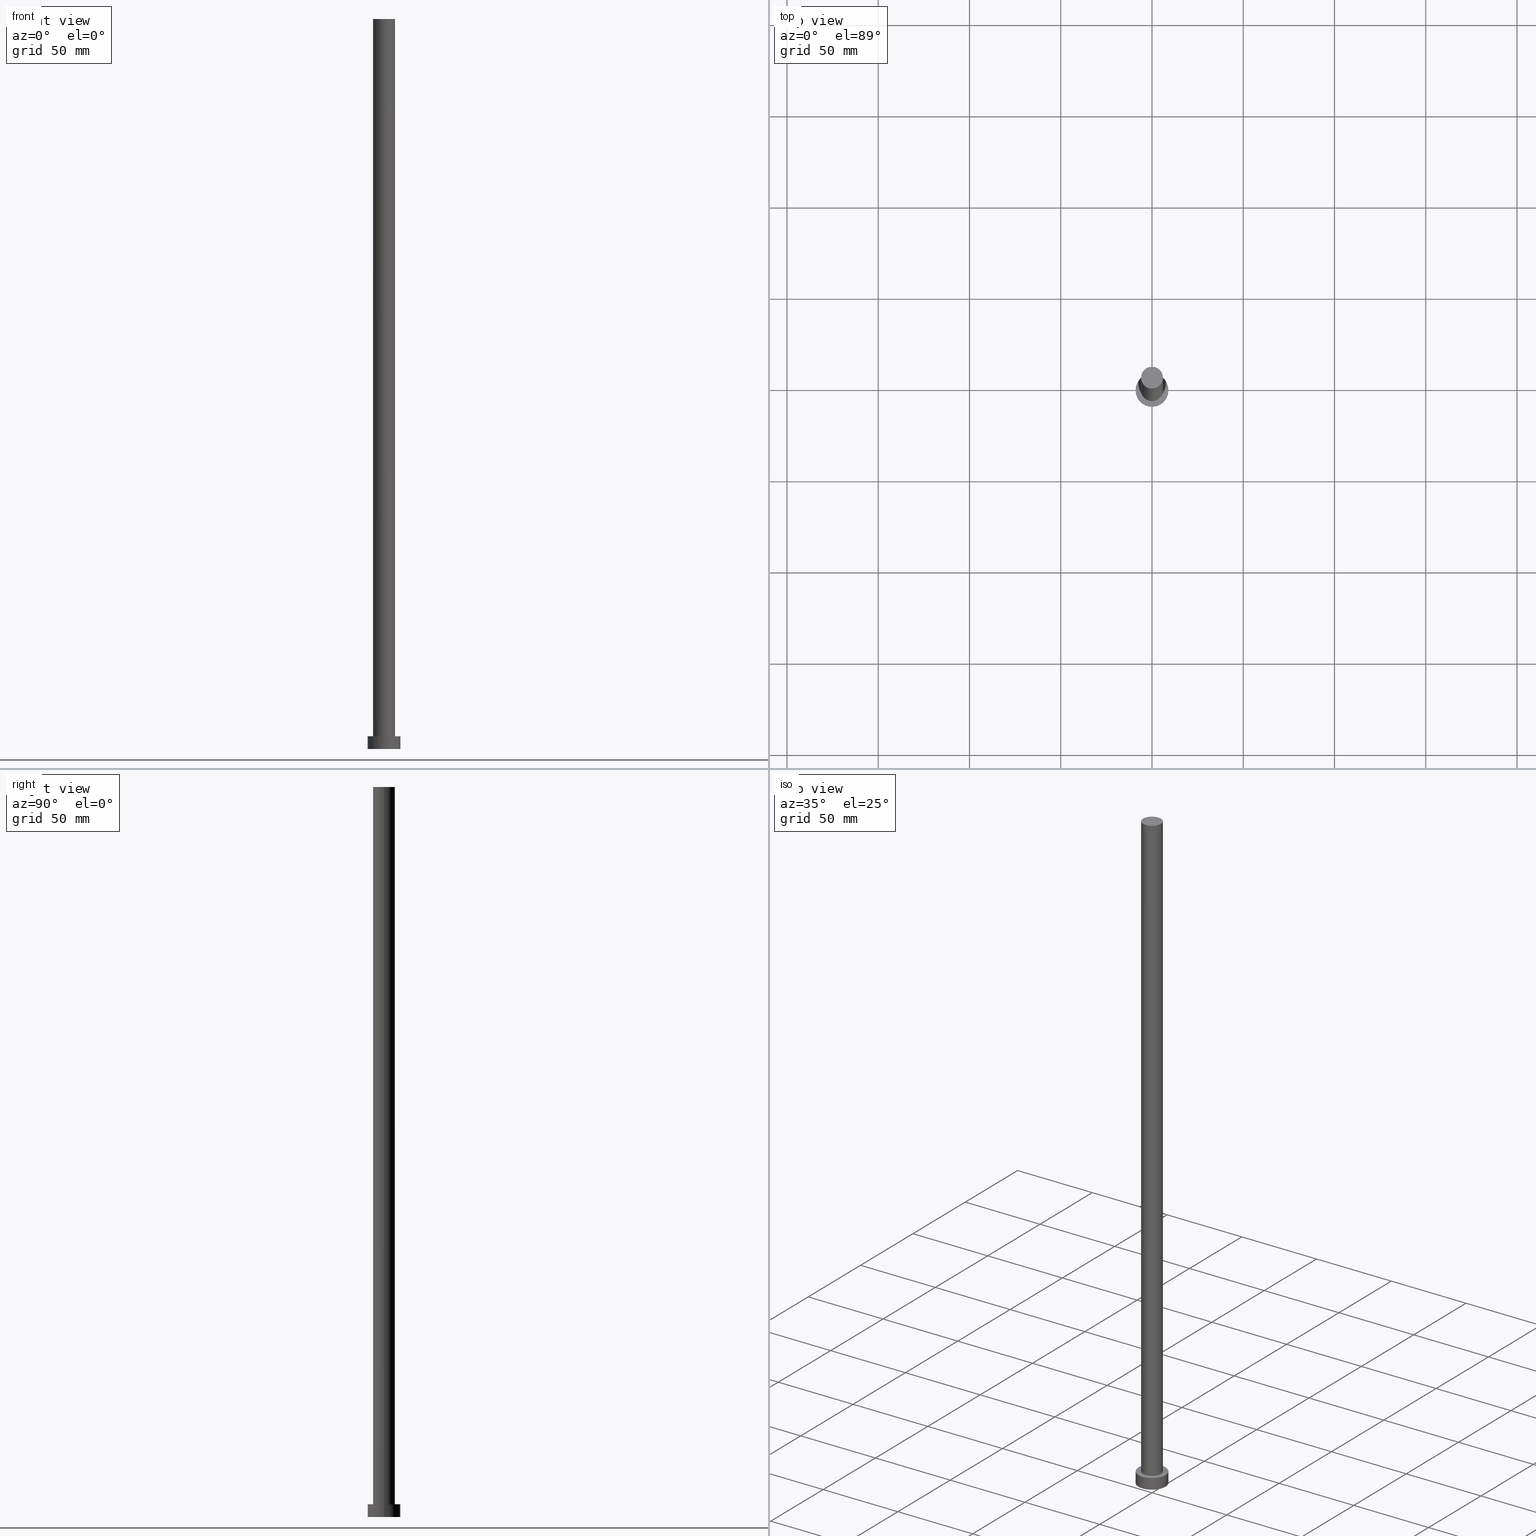
[diagram: canonical four-view strip — front | top / right | iso, engineering-drawing reading convention]
A machine part, canonical four-view strip (front | top / right | iso — engineering-drawing reading convention). The complete STEP part file that produces these views, byte-faithful:
ISO-10303-21;
HEADER;
FILE_DESCRIPTION (( 'STEP AP203' ),
    '1' );
FILE_NAME ('8816.STEP',
    '2023-02-13T08:56:15',
    ( '' ),
    ( '' ),
    'SwSTEP 2.0',
    'SolidWorks 2019',
    '' );
FILE_SCHEMA (( 'CONFIG_CONTROL_DESIGN' ));
ENDSEC;

DATA;
#1 = LINE ( 'NONE', #44, #5 ) ;
#2 = APPROVAL_ROLE ( '' ) ;
#3 = EDGE_CURVE ( 'NONE', #139, #204, #133, .T. ) ;
#4 = APPROVAL_PERSON_ORGANIZATION ( #152, #14, #69 ) ;
#5 = VECTOR ( 'NONE', #171, 1000.000000000000000 ) ;
#6 = DATE_AND_TIME ( #88, #51 ) ;
#7 = CC_DESIGN_PERSON_AND_ORGANIZATION_ASSIGNMENT ( #67, #29, ( #174 ) ) ;
#8 = APPROVAL_DATE_TIME ( #172, #95 ) ;
#9 = VERTEX_POINT ( 'NONE', #213 ) ;
#10 = DIRECTION ( 'NONE',  ( -0.000000000000000000, -0.000000000000000000, -1.000000000000000000 ) ) ;
#11 = AXIS2_PLACEMENT_3D ( 'NONE', #207, #10, #157 ) ;
#12 = ORIENTED_EDGE ( 'NONE', *, *, #177, .F. ) ;
#13 = VERTEX_POINT ( 'NONE', #98 ) ;
#14 = APPROVAL ( #155, 'NEUR�EN�' ) ;
#15 = APPLICATION_CONTEXT ( 'configuration controlled 3d designs of mechanical parts and assemblies' ) ;
#16 = DIRECTION ( 'NONE',  ( 0.000000000000000000, 0.000000000000000000, 1.000000000000000000 ) ) ;
#17 = CARTESIAN_POINT ( 'NONE',  ( 6.000000000000000888, 7.347880794884120722E-16, 400.0000000000000000 ) ) ;
#18 = EDGE_CURVE ( 'NONE', #9, #229, #111, .T. ) ;
#19 = PLANE ( 'NONE',  #212 ) ;
#20 = DIRECTION ( 'NONE',  ( -1.000000000000000000, 0.000000000000000000, 0.000000000000000000 ) ) ;
#21 = AXIS2_PLACEMENT_3D ( 'NONE', #76, #163, #203 ) ;
#22 = FACE_OUTER_BOUND ( 'NONE', #116, .T. ) ;
#23 = CARTESIAN_POINT ( 'NONE',  ( -6.000000000000000888, 0.000000000000000000, 400.0000000000000000 ) ) ;
#24 = PERSON_AND_ORGANIZATION_ROLE ( 'creator' ) ;
#25 = CARTESIAN_POINT ( 'NONE',  ( 0.000000000000000000, 0.000000000000000000, 7.000000000000000000 ) ) ;
#26 = DATE_AND_TIME ( #219, #38 ) ;
#27 = CIRCLE ( 'NONE', #62, 6.000000000000000888 ) ;
#28 = CIRCLE ( 'NONE', #200, 9.000000000000000000 ) ;
#29 = PERSON_AND_ORGANIZATION_ROLE ( 'classification_officer' ) ;
#30 = APPROVAL_DATE_TIME ( #109, #14 ) ;
#31 = CC_DESIGN_PERSON_AND_ORGANIZATION_ASSIGNMENT ( #223, #24, ( #140 ) ) ;
#32 = ORIENTED_EDGE ( 'NONE', *, *, #238, .T. ) ;
#33 = ORIENTED_EDGE ( 'NONE', *, *, #177, .T. ) ;
#34 = VECTOR ( 'NONE', #71, 1000.000000000000000 ) ;
#35 = CC_DESIGN_PERSON_AND_ORGANIZATION_ASSIGNMENT ( #135, #170, ( #59 ) ) ;
#36 = CARTESIAN_POINT ( 'NONE',  ( 0.000000000000000000, 0.000000000000000000, 7.000000000000000000 ) ) ;
#37 = CARTESIAN_POINT ( 'NONE',  ( 0.000000000000000000, 0.000000000000000000, 400.0000000000000000 ) ) ;
#38 = LOCAL_TIME ( 9, 56, 15.00000000000000000, #242 ) ;
#39 = CIRCLE ( 'NONE', #73, 6.000000000000000888 ) ;
#40 = CARTESIAN_POINT ( 'NONE',  ( 0.000000000000000000, 0.000000000000000000, 0.000000000000000000 ) ) ;
#41 = EDGE_LOOP ( 'NONE', ( #72, #228 ) ) ;
#42 = DIRECTION ( 'NONE',  ( -1.000000000000000000, 0.000000000000000000, 0.000000000000000000 ) ) ;
#43 = CYLINDRICAL_SURFACE ( 'NONE', #162, 9.000000000000000000 ) ;
#44 = CARTESIAN_POINT ( 'NONE',  ( -9.000000000000000000, 0.000000000000000000, 7.000000000000000000 ) ) ;
#45 = DATE_TIME_ROLE ( 'creation_date' ) ;
#46 = DIRECTION ( 'NONE',  ( 1.000000000000000000, 0.000000000000000000, -0.000000000000000000 ) ) ;
#47 = CARTESIAN_POINT ( 'NONE',  ( 9.000000000000000000, 1.102182119232617714E-15, 7.000000000000000000 ) ) ;
#48 = APPROVAL_STATUS ( 'not_yet_approved' ) ;
#49 = PERSON_AND_ORGANIZATION ( #230, #97 ) ;
#50 = PRODUCT_DEFINITION ( 'NEZN�M�', '', #140, #235 ) ;
#51 = LOCAL_TIME ( 9, 56, 15.00000000000000000, #150 ) ;
#52 = EDGE_LOOP ( 'NONE', ( #192, #224, #226, #80 ) ) ;
#53 = DIRECTION ( 'NONE',  ( 0.000000000000000000, 0.000000000000000000, 1.000000000000000000 ) ) ;
#54 = APPROVAL_PERSON_ORGANIZATION ( #49, #179, #2 ) ;
#55 = ORIENTED_EDGE ( 'NONE', *, *, #56, .F. ) ;
#56 = EDGE_CURVE ( 'NONE', #229, #139, #1, .T. ) ;
#57 = CIRCLE ( 'NONE', #92, 9.000000000000000000 ) ;
#58 = APPROVAL_PERSON_ORGANIZATION ( #221, #95, #130 ) ;
#59 = PRODUCT ( '8816', '8816', '', ( #68 ) ) ;
#60 = DIRECTION ( 'NONE',  ( 0.000000000000000000, 0.000000000000000000, 1.000000000000000000 ) ) ;
#61 = FACE_OUTER_BOUND ( 'NONE', #196, .T. ) ;
#62 = AXIS2_PLACEMENT_3D ( 'NONE', #176, #112, #202 ) ;
#63 = ORIENTED_EDGE ( 'NONE', *, *, #82, .F. ) ;
#64 = DIRECTION ( 'NONE',  ( 1.000000000000000000, 0.000000000000000000, 0.000000000000000000 ) ) ;
#65 = PLANE ( 'NONE',  #103 ) ;
#66 = FACE_OUTER_BOUND ( 'NONE', #41, .T. ) ;
#67 = PERSON_AND_ORGANIZATION ( #230, #97 ) ;
#68 = MECHANICAL_CONTEXT ( 'NONE', #15, 'mechanical' ) ;
#69 = APPROVAL_ROLE ( '' ) ;
#70 = EDGE_CURVE ( 'NONE', #9, #204, #248, .T. ) ;
#71 = DIRECTION ( 'NONE',  ( -0.000000000000000000, -0.000000000000000000, -1.000000000000000000 ) ) ;
#72 = ORIENTED_EDGE ( 'NONE', *, *, #107, .T. ) ;
#73 = AXIS2_PLACEMENT_3D ( 'NONE', #190, #53, #156 ) ;
#74 = DIRECTION ( 'NONE',  ( 1.000000000000000000, 0.000000000000000000, 0.000000000000000000 ) ) ;
#75 = EDGE_CURVE ( 'NONE', #210, #13, #39, .T. ) ;
#76 = CARTESIAN_POINT ( 'NONE',  ( 0.000000000000000000, 0.000000000000000000, 0.000000000000000000 ) ) ;
#77 = CYLINDRICAL_SURFACE ( 'NONE', #245, 9.000000000000000000 ) ;
#78 = EDGE_CURVE ( 'NONE', #124, #210, #225, .T. ) ;
#79 = CARTESIAN_POINT ( 'NONE',  ( 0.000000000000000000, 0.000000000000000000, 7.000000000000000000 ) ) ;
#80 = ORIENTED_EDGE ( 'NONE', *, *, #3, .T. ) ;
#81 = CIRCLE ( 'NONE', #153, 6.000000000000000888 ) ;
#82 = EDGE_CURVE ( 'NONE', #124, #143, #233, .T. ) ;
#83 = FACE_BOUND ( 'NONE', #231, .T. ) ;
#84 = CALENDAR_DATE ( 2023, 13, 2 ) ;
#85 = APPROVAL_DATE_TIME ( #222, #179 ) ;
#86 = LOCAL_TIME ( 9, 56, 15.00000000000000000, #205 ) ;
#87 = EDGE_CURVE ( 'NONE', #143, #13, #180, .T. ) ;
#88 = CALENDAR_DATE ( 2023, 13, 2 ) ;
#89 =( LENGTH_UNIT ( ) NAMED_UNIT ( * ) SI_UNIT ( .MILLI., .METRE. ) );
#90 = SHAPE_DEFINITION_REPRESENTATION ( #93, #178 ) ;
#91 = CYLINDRICAL_SURFACE ( 'NONE', #11, 6.000000000000000888 ) ;
#92 = AXIS2_PLACEMENT_3D ( 'NONE', #126, #169, #127 ) ;
#93 = PRODUCT_DEFINITION_SHAPE ( 'NONE', 'NONE',  #50 ) ;
#94 = ORIENTED_EDGE ( 'NONE', *, *, #87, .T. ) ;
#95 = APPROVAL ( #48, 'NEUR�EN�' ) ;
#96 = AXIS2_PLACEMENT_3D ( 'NONE', #216, #239, #104 ) ;
#97 = ORGANIZATION ( 'NEUR�EN�', 'NEUR�EN�', '' ) ;
#98 = CARTESIAN_POINT ( 'NONE',  ( 6.000000000000000888, 7.347880794884120722E-16, 7.000000000000000000 ) ) ;
#99 = MANIFOLD_SOLID_BREP ( 'P�idat vysunut�m3', #195 ) ;
#100 = CARTESIAN_POINT ( 'NONE',  ( 0.000000000000000000, 0.000000000000000000, 400.0000000000000000 ) ) ;
#101 = VECTOR ( 'NONE', #117, 1000.000000000000000 ) ;
#102 = ORIENTED_EDGE ( 'NONE', *, *, #252, .T. ) ;
#103 = AXIS2_PLACEMENT_3D ( 'NONE', #79, #220, #46 ) ;
#104 = DIRECTION ( 'NONE',  ( 1.000000000000000000, 0.000000000000000000, -0.000000000000000000 ) ) ;
#105 = APPLICATION_CONTEXT ( 'configuration controlled 3d designs of mechanical parts and assemblies' ) ;
#106 = SECURITY_CLASSIFICATION_LEVEL ( 'unclassified' ) ;
#107 = EDGE_CURVE ( 'NONE', #229, #9, #28, .T. ) ;
#108 = DIRECTION ( 'NONE',  ( 1.000000000000000000, 0.000000000000000000, 0.000000000000000000 ) ) ;
#109 = DATE_AND_TIME ( #241, #134 ) ;
#110 = CC_DESIGN_SECURITY_CLASSIFICATION ( #174, ( #140 ) ) ;
#111 = CIRCLE ( 'NONE', #122, 9.000000000000000000 ) ;
#112 = DIRECTION ( 'NONE',  ( 0.000000000000000000, 0.000000000000000000, 1.000000000000000000 ) ) ;
#113 = PERSON_AND_ORGANIZATION ( #230, #97 ) ;
#114 = COORDINATED_UNIVERSAL_TIME_OFFSET ( 1, 0, .AHEAD. ) ;
#115 = ORIENTED_EDGE ( 'NONE', *, *, #78, .F. ) ;
#116 = EDGE_LOOP ( 'NONE', ( #145, #12 ) ) ;
#117 = DIRECTION ( 'NONE',  ( -0.000000000000000000, -0.000000000000000000, -1.000000000000000000 ) ) ;
#118 = CC_DESIGN_DATE_AND_TIME_ASSIGNMENT ( #26, #45, ( #50 ) ) ;
#119 = AXIS2_PLACEMENT_3D ( 'NONE', #164, #237, #20 ) ;
#120 =( NAMED_UNIT ( * ) PLANE_ANGLE_UNIT ( ) SI_UNIT ( $, .RADIAN. ) );
#121 = CC_DESIGN_APPROVAL ( #179, ( #50 ) ) ;
#122 = AXIS2_PLACEMENT_3D ( 'NONE', #36, #193, #108 ) ;
#123 = CYLINDRICAL_SURFACE ( 'NONE', #119, 6.000000000000000888 ) ;
#124 = VERTEX_POINT ( 'NONE', #23 ) ;
#125 = CARTESIAN_POINT ( 'NONE',  ( 6.000000000000000888, 7.347880794884120722E-16, 400.0000000000000000 ) ) ;
#126 = CARTESIAN_POINT ( 'NONE',  ( 0.000000000000000000, 0.000000000000000000, 0.000000000000000000 ) ) ;
#127 = DIRECTION ( 'NONE',  ( 1.000000000000000000, 0.000000000000000000, 0.000000000000000000 ) ) ;
#128 = COORDINATED_UNIVERSAL_TIME_OFFSET ( 1, 0, .AHEAD. ) ;
#129 = DIRECTION ( 'NONE',  ( -1.000000000000000000, 0.000000000000000000, 0.000000000000000000 ) ) ;
#130 = APPROVAL_ROLE ( '' ) ;
#131 = ADVANCED_FACE ( 'NONE', ( #61 ), #144, .T. ) ;
#132 = PERSON_AND_ORGANIZATION ( #230, #97 ) ;
#133 = CIRCLE ( 'NONE', #227, 9.000000000000000000 ) ;
#134 = LOCAL_TIME ( 9, 56, 15.00000000000000000, #128 ) ;
#135 = PERSON_AND_ORGANIZATION ( #230, #97 ) ;
#136 = CC_DESIGN_DATE_AND_TIME_ASSIGNMENT ( #6, #199, ( #174 ) ) ;
#137 = ORIENTED_EDGE ( 'NONE', *, *, #252, .F. ) ;
#138 = DIRECTION ( 'NONE',  ( 1.000000000000000000, 0.000000000000000000, 0.000000000000000000 ) ) ;
#139 = VERTEX_POINT ( 'NONE', #215 ) ;
#140 = PRODUCT_DEFINITION_FORMATION_WITH_SPECIFIED_SOURCE ( 'LIBOVOLN�', '', #59, .NOT_KNOWN. ) ;
#141 = CARTESIAN_POINT ( 'NONE',  ( -9.000000000000000000, 0.000000000000000000, 7.000000000000000000 ) ) ;
#142 =( GEOMETRIC_REPRESENTATION_CONTEXT ( 3 ) GLOBAL_UNCERTAINTY_ASSIGNED_CONTEXT ( ( #158 ) ) GLOBAL_UNIT_ASSIGNED_CONTEXT ( ( #89, #120, #251 ) ) REPRESENTATION_CONTEXT ( 'NONE', 'WORKASPACE' ) );
#143 = VERTEX_POINT ( 'NONE', #125 ) ;
#144 = PLANE ( 'NONE',  #96 ) ;
#145 = ORIENTED_EDGE ( 'NONE', *, *, #3, .F. ) ;
#146 = CARTESIAN_POINT ( 'NONE',  ( 0.000000000000000000, 0.000000000000000000, 7.000000000000000000 ) ) ;
#147 = APPLICATION_PROTOCOL_DEFINITION ( 'international standard', 'config_control_design', 1994, #105 ) ;
#148 = CARTESIAN_POINT ( 'NONE',  ( -6.000000000000000888, 0.000000000000000000, 7.000000000000000000 ) ) ;
#149 = CC_DESIGN_PERSON_AND_ORGANIZATION_ASSIGNMENT ( #132, #201, ( #50 ) ) ;
#150 = COORDINATED_UNIVERSAL_TIME_OFFSET ( 1, 0, .AHEAD. ) ;
#151 = CALENDAR_DATE ( 2023, 13, 2 ) ;
#152 = PERSON_AND_ORGANIZATION ( #230, #97 ) ;
#153 = AXIS2_PLACEMENT_3D ( 'NONE', #100, #243, #138 ) ;
#154 = ADVANCED_FACE ( 'NONE', ( #218 ), #43, .T. ) ;
#155 = APPROVAL_STATUS ( 'not_yet_approved' ) ;
#156 = DIRECTION ( 'NONE',  ( 1.000000000000000000, 0.000000000000000000, 0.000000000000000000 ) ) ;
#157 = DIRECTION ( 'NONE',  ( -1.000000000000000000, 0.000000000000000000, 0.000000000000000000 ) ) ;
#158 = UNCERTAINTY_MEASURE_WITH_UNIT (LENGTH_MEASURE( 1.000000000000000082E-05 ), #89, 'distance_accuracy_value', 'NONE');
#159 = ORIENTED_EDGE ( 'NONE', *, *, #87, .F. ) ;
#160 = DIRECTION ( 'NONE',  ( -0.000000000000000000, -0.000000000000000000, -1.000000000000000000 ) ) ;
#161 = EDGE_LOOP ( 'NONE', ( #247, #191, #33, #55 ) ) ;
#162 = AXIS2_PLACEMENT_3D ( 'NONE', #25, #184, #129 ) ;
#163 = DIRECTION ( 'NONE',  ( 0.000000000000000000, 0.000000000000000000, 1.000000000000000000 ) ) ;
#164 = CARTESIAN_POINT ( 'NONE',  ( 0.000000000000000000, 0.000000000000000000, 400.0000000000000000 ) ) ;
#165 = CC_DESIGN_APPROVAL ( #14, ( #140 ) ) ;
#166 = EDGE_LOOP ( 'NONE', ( #159, #63, #249, #167 ) ) ;
#167 = ORIENTED_EDGE ( 'NONE', *, *, #75, .T. ) ;
#168 = DIRECTION ( 'NONE',  ( 1.000000000000000000, 0.000000000000000000, -0.000000000000000000 ) ) ;
#169 = DIRECTION ( 'NONE',  ( 0.000000000000000000, 0.000000000000000000, 1.000000000000000000 ) ) ;
#170 = PERSON_AND_ORGANIZATION_ROLE ( 'design_owner' ) ;
#171 = DIRECTION ( 'NONE',  ( -0.000000000000000000, -0.000000000000000000, -1.000000000000000000 ) ) ;
#172 = DATE_AND_TIME ( #84, #197 ) ;
#173 = APPROVAL_STATUS ( 'not_yet_approved' ) ;
#174 = SECURITY_CLASSIFICATION ( '', '', #106 ) ;
#175 = ORIENTED_EDGE ( 'NONE', *, *, #82, .T. ) ;
#176 = CARTESIAN_POINT ( 'NONE',  ( 0.000000000000000000, 0.000000000000000000, 7.000000000000000000 ) ) ;
#177 = EDGE_CURVE ( 'NONE', #204, #139, #57, .T. ) ;
#178 = ADVANCED_BREP_SHAPE_REPRESENTATION ( '8816', ( #99, #21 ), #142 ) ;
#179 = APPROVAL ( #173, 'NEUR�EN�' ) ;
#180 = LINE ( 'NONE', #17, #244 ) ;
#181 = FACE_OUTER_BOUND ( 'NONE', #161, .T. ) ;
#182 = CARTESIAN_POINT ( 'NONE',  ( 0.000000000000000000, 0.000000000000000000, 0.000000000000000000 ) ) ;
#183 = DIRECTION ( 'NONE',  ( 0.000000000000000000, 0.000000000000000000, 1.000000000000000000 ) ) ;
#184 = DIRECTION ( 'NONE',  ( -0.000000000000000000, -0.000000000000000000, -1.000000000000000000 ) ) ;
#185 = ADVANCED_FACE ( 'NONE', ( #22 ), #19, .F. ) ;
#186 = PERSON_AND_ORGANIZATION_ROLE ( 'design_supplier' ) ;
#187 = ORIENTED_EDGE ( 'NONE', *, *, #238, .F. ) ;
#188 = CC_DESIGN_APPROVAL ( #95, ( #174 ) ) ;
#189 = FACE_OUTER_BOUND ( 'NONE', #166, .T. ) ;
#190 = CARTESIAN_POINT ( 'NONE',  ( 0.000000000000000000, 0.000000000000000000, 7.000000000000000000 ) ) ;
#191 = ORIENTED_EDGE ( 'NONE', *, *, #70, .T. ) ;
#192 = ORIENTED_EDGE ( 'NONE', *, *, #70, .F. ) ;
#193 = DIRECTION ( 'NONE',  ( 0.000000000000000000, 0.000000000000000000, 1.000000000000000000 ) ) ;
#194 = CARTESIAN_POINT ( 'NONE',  ( 0.000000000000000000, 0.000000000000000000, 7.000000000000000000 ) ) ;
#195 = CLOSED_SHELL ( 'NONE', ( #234, #217, #154, #214, #185, #246, #131 ) ) ;
#196 = EDGE_LOOP ( 'NONE', ( #175, #32 ) ) ;
#197 = LOCAL_TIME ( 9, 56, 15.00000000000000000, #114 ) ;
#198 = PRODUCT_RELATED_PRODUCT_CATEGORY ( 'detail', '', ( #59 ) ) ;
#199 = DATE_TIME_ROLE ( 'classification_date' ) ;
#200 = AXIS2_PLACEMENT_3D ( 'NONE', #194, #16, #211 ) ;
#201 = PERSON_AND_ORGANIZATION_ROLE ( 'creator' ) ;
#202 = DIRECTION ( 'NONE',  ( 1.000000000000000000, 0.000000000000000000, 0.000000000000000000 ) ) ;
#203 = DIRECTION ( 'NONE',  ( 1.000000000000000000, 0.000000000000000000, 0.000000000000000000 ) ) ;
#204 = VERTEX_POINT ( 'NONE', #240 ) ;
#205 = COORDINATED_UNIVERSAL_TIME_OFFSET ( 1, 0, .AHEAD. ) ;
#206 = EDGE_LOOP ( 'NONE', ( #187, #94, #102, #115 ) ) ;
#207 = CARTESIAN_POINT ( 'NONE',  ( 0.000000000000000000, 0.000000000000000000, 400.0000000000000000 ) ) ;
#208 = CARTESIAN_POINT ( 'NONE',  ( -6.000000000000000888, 0.000000000000000000, 400.0000000000000000 ) ) ;
#209 = CC_DESIGN_PERSON_AND_ORGANIZATION_ASSIGNMENT ( #113, #186, ( #140 ) ) ;
#210 = VERTEX_POINT ( 'NONE', #148 ) ;
#211 = DIRECTION ( 'NONE',  ( 1.000000000000000000, 0.000000000000000000, 0.000000000000000000 ) ) ;
#212 = AXIS2_PLACEMENT_3D ( 'NONE', #40, #183, #168 ) ;
#213 = CARTESIAN_POINT ( 'NONE',  ( 9.000000000000000000, 1.102182119232617714E-15, 7.000000000000000000 ) ) ;
#214 = ADVANCED_FACE ( 'NONE', ( #83, #66 ), #65, .T. ) ;
#215 = CARTESIAN_POINT ( 'NONE',  ( -9.000000000000000000, 0.000000000000000000, 0.000000000000000000 ) ) ;
#216 = CARTESIAN_POINT ( 'NONE',  ( 0.000000000000000000, 0.000000000000000000, 400.0000000000000000 ) ) ;
#217 = ADVANCED_FACE ( 'NONE', ( #181 ), #77, .T. ) ;
#218 = FACE_OUTER_BOUND ( 'NONE', #52, .T. ) ;
#219 = CALENDAR_DATE ( 2023, 13, 2 ) ;
#220 = DIRECTION ( 'NONE',  ( 0.000000000000000000, 0.000000000000000000, 1.000000000000000000 ) ) ;
#221 = PERSON_AND_ORGANIZATION ( #230, #97 ) ;
#222 = DATE_AND_TIME ( #151, #86 ) ;
#223 = PERSON_AND_ORGANIZATION ( #230, #97 ) ;
#224 = ORIENTED_EDGE ( 'NONE', *, *, #107, .F. ) ;
#225 = LINE ( 'NONE', #208, #101 ) ;
#226 = ORIENTED_EDGE ( 'NONE', *, *, #56, .T. ) ;
#227 = AXIS2_PLACEMENT_3D ( 'NONE', #182, #255, #64 ) ;
#228 = ORIENTED_EDGE ( 'NONE', *, *, #18, .T. ) ;
#229 = VERTEX_POINT ( 'NONE', #141 ) ;
#230 = PERSON ( 'NEUR�EN�', 'NEUR�EN�', 'NEUR�EN�', ('NEUR�EN�'), ('NEUR�EN�'), ('NEUR�EN�') ) ;
#231 = EDGE_LOOP ( 'NONE', ( #232, #137 ) ) ;
#232 = ORIENTED_EDGE ( 'NONE', *, *, #75, .F. ) ;
#233 = CIRCLE ( 'NONE', #250, 6.000000000000000888 ) ;
#234 = ADVANCED_FACE ( 'NONE', ( #253 ), #123, .T. ) ;
#235 = DESIGN_CONTEXT ( 'detailed design', #105, 'design' ) ;
#236 = DIRECTION ( 'NONE',  ( -0.000000000000000000, -0.000000000000000000, -1.000000000000000000 ) ) ;
#237 = DIRECTION ( 'NONE',  ( -0.000000000000000000, -0.000000000000000000, -1.000000000000000000 ) ) ;
#238 = EDGE_CURVE ( 'NONE', #143, #124, #81, .T. ) ;
#239 = DIRECTION ( 'NONE',  ( 0.000000000000000000, 0.000000000000000000, 1.000000000000000000 ) ) ;
#240 = CARTESIAN_POINT ( 'NONE',  ( 9.000000000000000000, 1.102182119232617714E-15, 0.000000000000000000 ) ) ;
#241 = CALENDAR_DATE ( 2023, 13, 2 ) ;
#242 = COORDINATED_UNIVERSAL_TIME_OFFSET ( 1, 0, .AHEAD. ) ;
#243 = DIRECTION ( 'NONE',  ( 0.000000000000000000, 0.000000000000000000, 1.000000000000000000 ) ) ;
#244 = VECTOR ( 'NONE', #160, 1000.000000000000000 ) ;
#245 = AXIS2_PLACEMENT_3D ( 'NONE', #146, #236, #42 ) ;
#246 = ADVANCED_FACE ( 'NONE', ( #189 ), #91, .T. ) ;
#247 = ORIENTED_EDGE ( 'NONE', *, *, #18, .F. ) ;
#248 = LINE ( 'NONE', #47, #34 ) ;
#249 = ORIENTED_EDGE ( 'NONE', *, *, #78, .T. ) ;
#250 = AXIS2_PLACEMENT_3D ( 'NONE', #37, #60, #74 ) ;
#251 =( NAMED_UNIT ( * ) SI_UNIT ( $, .STERADIAN. ) SOLID_ANGLE_UNIT ( ) );
#252 = EDGE_CURVE ( 'NONE', #13, #210, #27, .T. ) ;
#253 = FACE_OUTER_BOUND ( 'NONE', #206, .T. ) ;
#254 = APPLICATION_PROTOCOL_DEFINITION ( 'international standard', 'config_control_design', 1994, #15 ) ;
#255 = DIRECTION ( 'NONE',  ( 0.000000000000000000, 0.000000000000000000, 1.000000000000000000 ) ) ;
ENDSEC;
END-ISO-10303-21;
